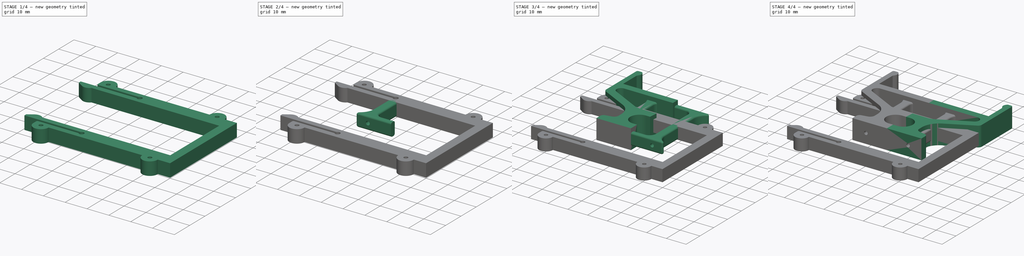
[diagram: build sequence overview — one tinted view per stage of 4, left to right]
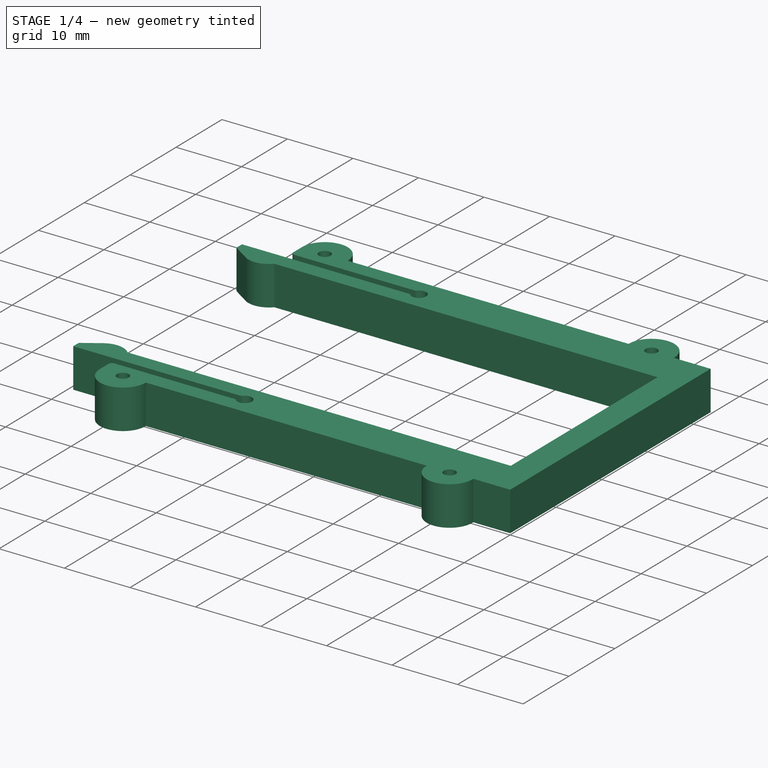
[diagram: stage 1 of 4 — iso view after this stage's code; geometry added in this stage tinted green]
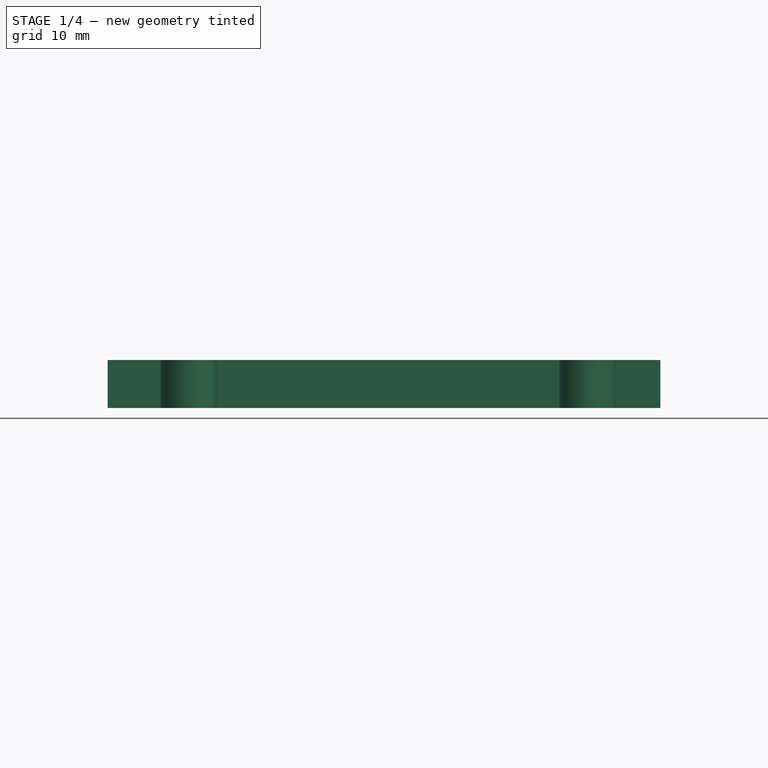
[diagram: stage 1 of 4 — front view after this stage's code; geometry added in this stage tinted green]
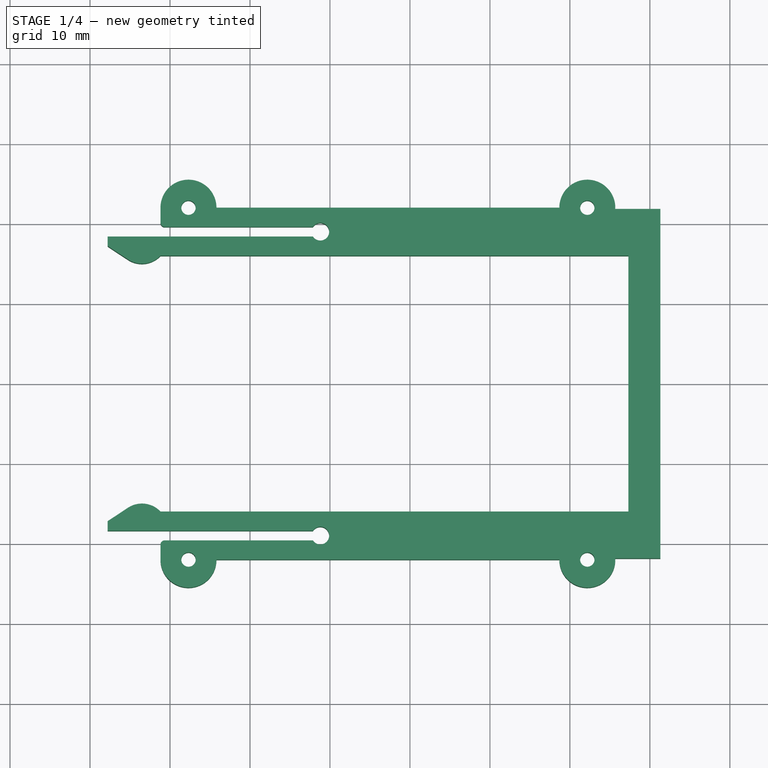
[diagram: stage 1 of 4 — top view after this stage's code; geometry added in this stage tinted green]
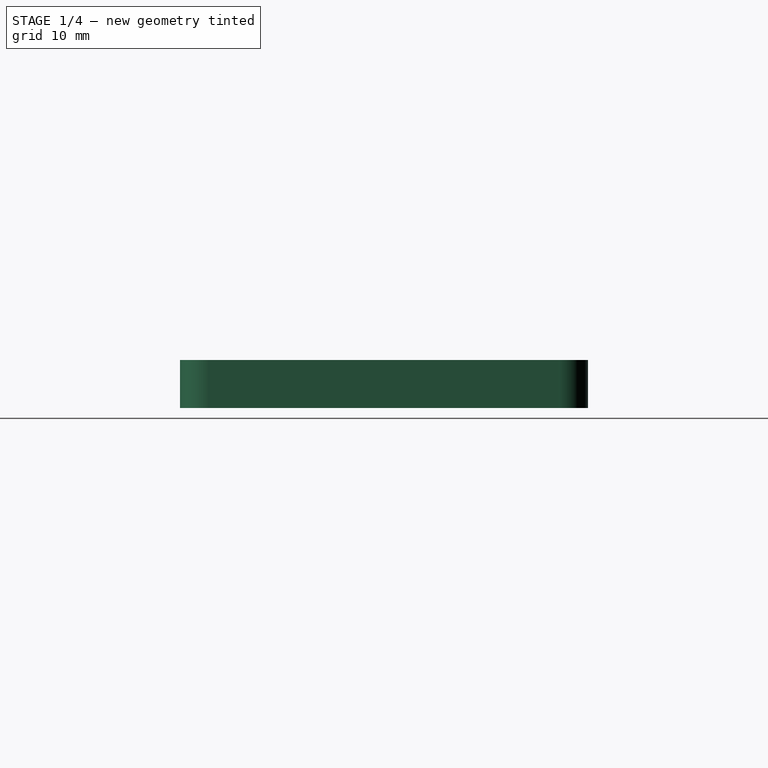
[diagram: stage 1 of 4 — right view after this stage's code; geometry added in this stage tinted green]
FCSTD DOCUMENT  (FreeCAD 1.0R39319 (Git))
Label: paolo_bread_stand_batteria
License: All rights reserved
LicenseURL: http://en.wikipedia.org/wiki/All_rights_reserved
objects: Sketcher::SketchObject×5, PartDesign::Mirrored×4, PartDesign::Pad×3, PartDesign::Body×3, PartDesign::Pocket×2, PartDesign::SubShapeBinder×1, PartDesign::Fillet×1
note: 40 computed .brp shape members not serialized (recipe doc carries the construction recipe); baked Part::Feature solids carry a one-line shape summary decoded from their .brp

FEATURE [PartDesign::Body] Body001
  AllowCompound = false
  Group = -> [Binder,Sketch002,Pad001,Sketch003,Pocket001,Fillet,Mirrored001,Mirrored002]
  Origin = -> Origin001
  Tip = -> Mirrored002
FEATURE [Sketcher::SketchObject] Sketch004
  ArcFitTolerance = 1e-06
  AttachmentSupport = -> [XY_Plane002]
  FullyConstrained = false
  MakeInternals = false
  MapMode = 5
  sketch-geometry (25):
    g0: LineSegment StartX=27.3107 StartY=-16 StartZ=0 EndX=-31.1893 EndY=-16 EndZ=0
    g1: LineSegment StartX=27.3107 StartY=1.0905e-12 StartZ=0 EndX=27.3107 EndY=-16 EndZ=0
    g2: LineSegment StartX=31.3107 StartY=-21.8446 StartZ=0 EndX=31.3107 EndY=1.0907e-12 EndZ=0
    g3: LineSegment StartX=31.3107 StartY=1.0905e-12 StartZ=0 EndX=27.3107 EndY=1.0905e-12 EndZ=0
    g4: LineSegment StartX=-12.1359 StartY=-18.4 StartZ=0 EndX=-37.7956 EndY=-18.4 EndZ=0
    g5: LineSegment StartX=-30.655 StartY=-19.6 StartZ=0 EndX=-12.1359 EndY=-19.6 EndZ=0
    g6: LineSegment StartX=-31.1893 StartY=-20.1343 StartZ=0 EndX=-31.1893 EndY=-22 EndZ=0
    g7: ArcOfCircle CenterX=-11.2053 CenterY=-19 CenterZ=0 NormalX=0 NormalY=0 NormalZ=1 AngleXU=0 Radius=1.1073 StartAngle=3.71424 EndAngle=8.85213
    g8: GeomPoint [constr] X=-34.09 Y=-18.4 Z=0
    g9: ArcOfCircle CenterX=-33.505 CenterY=-18.1813 CenterZ=0 NormalX=0 NormalY=0 NormalZ=1 AngleXU=0 Radius=3.18127 StartAngle=0.75551 EndAngle=2.15379
    g10: LineSegment StartX=-37.7956 StartY=-17.2 StartZ=0 EndX=-37.7956 EndY=-18.4 EndZ=0
    g11: GeomPoint [constr] X=-33.505 Y=-15 Z=0
    g12: Circle CenterX=-27.6893 CenterY=-22 CenterZ=0 NormalX=0 NormalY=0 NormalZ=1 AngleXU=0 Radius=0.9
    g13: LineSegment StartX=-24.1893 StartY=-22 StartZ=0 EndX=18.6777 EndY=-22 EndZ=0
    g14: ArcOfCircle CenterX=-27.6893 CenterY=-22 CenterZ=0 NormalX=0 NormalY=0 NormalZ=1 AngleXU=0 Radius=3.5 StartAngle=3.14159 EndAngle=6.28319
    g15: Circle CenterX=22.1777 CenterY=-22 CenterZ=0 NormalX=0 NormalY=0 NormalZ=1 AngleXU=0 Radius=0.9
    g16: ArcOfCircle CenterX=22.1777 CenterY=-22 CenterZ=0 NormalX=0 NormalY=0 NormalZ=1 AngleXU=0 Radius=3.5 StartAngle=3.14159 EndAngle=6.3276
    g17: LineSegment StartX=25.6742 StartY=-21.8446 StartZ=0 EndX=31.3107 EndY=-21.8446 EndZ=0
    g18: LineSegment [constr] StartX=-12.1359 StartY=-18.4 StartZ=0 EndX=-12.1359 EndY=-19.6 EndZ=0
    g19: GeomPoint [constr] X=-12.1359 Y=-19 Z=0
    g20: LineSegment StartX=-37.7956 StartY=-17.2 StartZ=0 EndX=-35.2563 EndY=-15.5255 EndZ=0
    g21: LineSegment [constr] StartX=-16.7931 StartY=-16 StartZ=0 EndX=-16.7931 EndY=-18.4 EndZ=0
    g22: ArcOfCircle CenterX=-30.655 CenterY=-20.1343 CenterZ=0 NormalX=0 NormalY=0 NormalZ=1 AngleXU=0 Radius=0.534283 StartAngle=1.5708 EndAngle=3.14159
    g23: GeomPoint [constr] X=-31.1893 Y=-19.6 Z=0
    g24: LineSegment [constr] StartX=-17.9498 StartY=-19.6 StartZ=0 EndX=-17.9498 EndY=-22 EndZ=0
  constraints (62):
    c: Horizontal(g0)
    c: Coincident(g17,g2)
    c: Coincident(g2,g3)
    c: Coincident(g3,g1)
    c: Vertical(g1)
    c: Vertical(g2)
    c: Horizontal(g3)
    c: PointOnObject(g1,g-1)
    c: Coincident(g1,g0)
    c: Horizontal(g4)
    c: Horizontal(g5)
    c: Coincident(g7,g5)
    c: Coincident(g4,g7)
    c: DistanceY(g0,g1) = 16
    c: DistanceX(g0,g0) = 58.5
    c: PointOnObject(g8,g4)
    c: DistanceY(g4,g0) = 2.4
    c: Coincident(g9,g0)
    c: Coincident(g10,g9)
    c: Coincident(g10,g4)
    c: Vertical(g10)
    c: DistanceY(g0,g-1) = 16
    c: PointOnObject(g11,g9)
    c: Vertical(g11,g9)
    c: DistanceY(g23,g4) = 1.2
    c: Diameter(g12) = 1.8
    c: Coincident(g14,g12)
    c: Coincident(g13,g14)
    c: Coincident(g6,g14)
    c: Horizontal(g13)
    c: Coincident(g16,g15)
    c: Equal(g16,g14)
    c: Vertical(g6)
    c: Equal(g12,g15)
    c: Coincident(g16,g17)
    c: Coincident(g16,g13)
    c: Vertical(g5,g4)
    c: Coincident(g18,g4)
    c: Coincident(g18,g5)
    c: Symmetric(g18,g18,g19)
    c: Horizontal(g13,g6)
    c: Horizontal(g15,g13)
    c: Horizontal(g13,g12)
    c: Coincident(g20,g10)
    c: Tangent(g20,g9) = 1.5708
    c: DistanceY(g0,g11) = 1
    c: PointOnObject(g21,g0)
    c: PointOnObject(g21,g4)
    c: Vertical(g21)
    c: Vertical(g23,g0)
    c: DistanceY(g4,g10) = 1.2
    c: PointOnObject(g23,g5)
    c: PointOnObject(g23,g6)
    c: Tangent(g5,g22) = 1.5708
    c: Tangent(g6,g22) = -1.5708
    c: Diameter(g14) = 7
    c: Horizontal(g17)
    c: PointOnObject(g24,g5)
    c: PointOnObject(g24,g13)
    c: Vertical(g24)
    c: Equal(g24,g21)
    c: DistanceX(g1,g2) = 4
FEATURE [PartDesign::Pad] Pad002
  Direction = (0,0,1)
  Length = 6
  Length2 = 10
  Midplane = true
  Profile = -> Sketch004
  ReferenceAxis = -> Sketch004 [N_Axis]
  Suppressed = false
  Type = 0
FEATURE [PartDesign::Mirrored] Mirrored003
  BaseFeature = -> Pad002
  MirrorPlane = -> Pad002 [Face8]
  Originals = -> [Pad002]
  Suppressed = false
  TransformMode = 0
FEATURE [PartDesign::Body] Body002
  AllowCompound = false
  Group = -> [Sketch004,Pad002,Mirrored003]
  Origin = -> Origin002
  Tip = -> Mirrored003
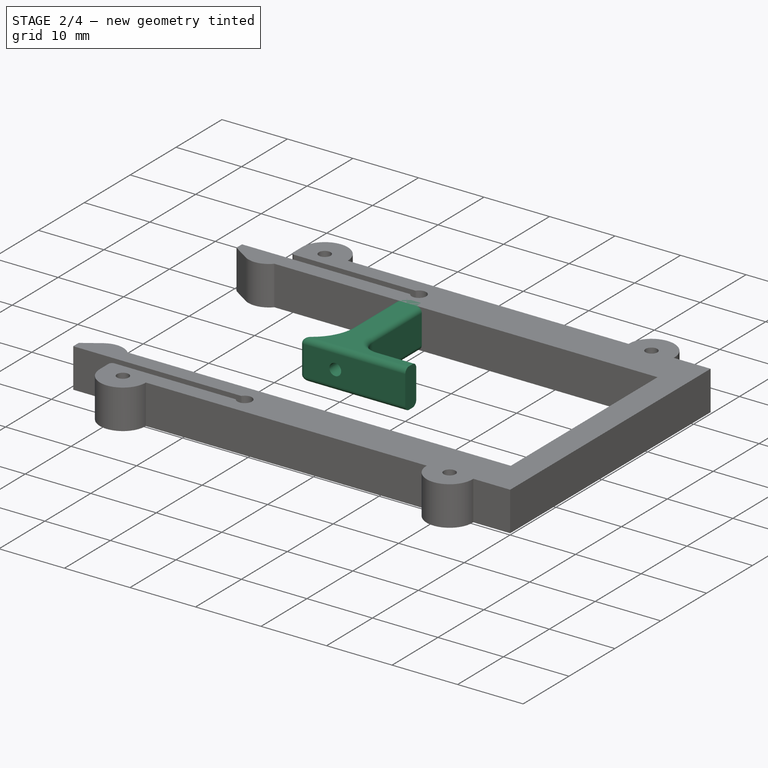
[diagram: stage 2 of 4 — iso view after this stage's code; geometry added in this stage tinted green]
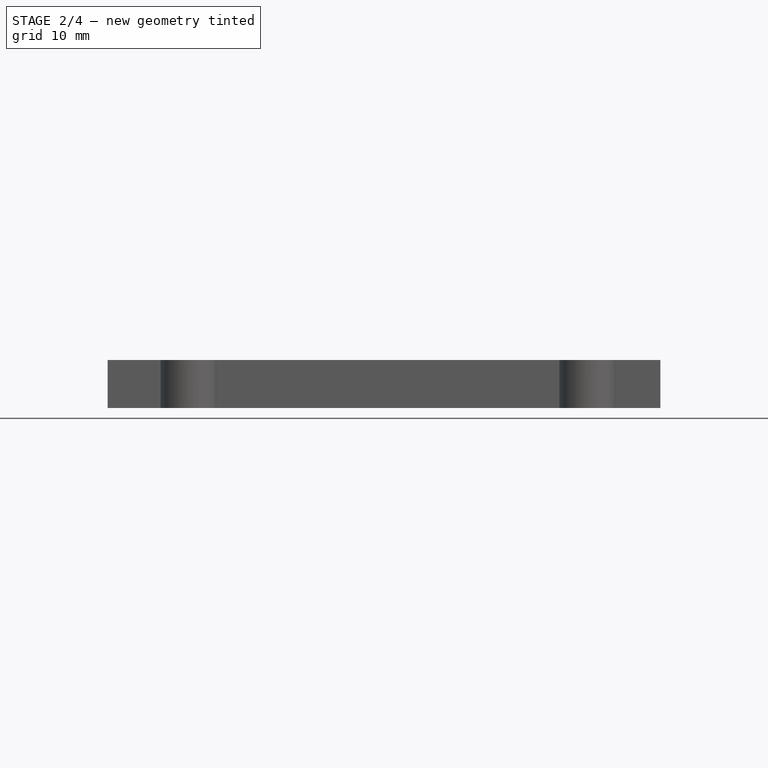
[diagram: stage 2 of 4 — front view after this stage's code; geometry added in this stage tinted green]
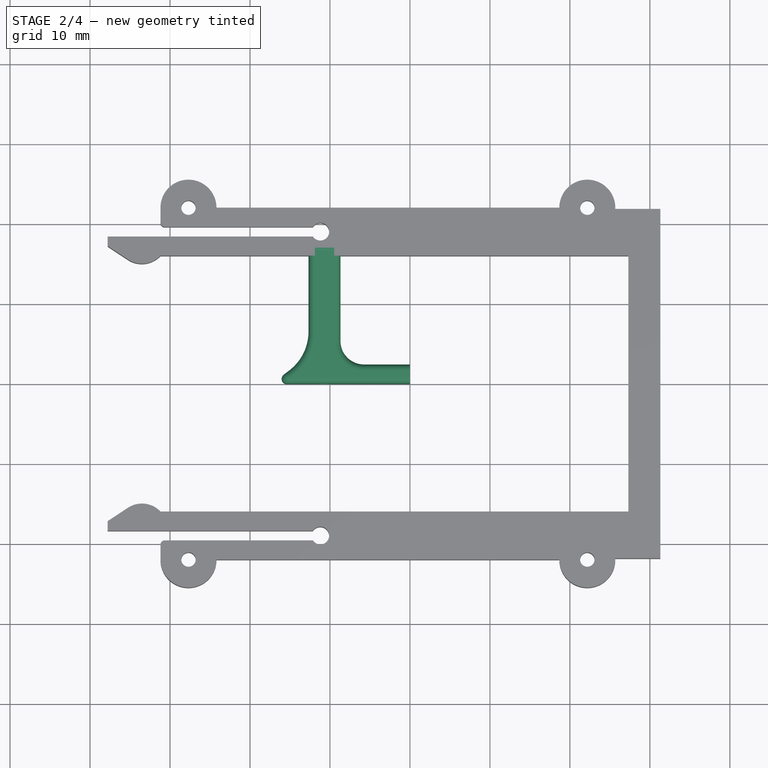
[diagram: stage 2 of 4 — top view after this stage's code; geometry added in this stage tinted green]
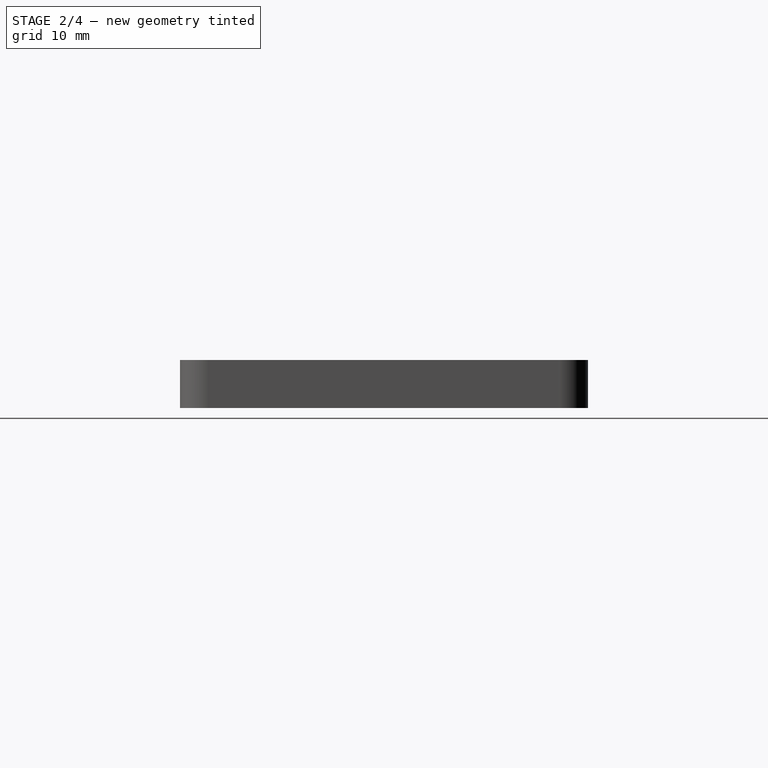
[diagram: stage 2 of 4 — right view after this stage's code; geometry added in this stage tinted green]
FEATURE [PartDesign::Body] Body
  AllowCompound = false
  Group = -> [Sketch,Pad,Sketch001,Pocket,Mirrored]
  Origin = -> Origin
  Tip = -> Mirrored
FEATURE [PartDesign::SubShapeBinder] Binder
  BindCopyOnChange = 0
  BindMode = 0
  ClaimChildren = false
  Context = -> Body001 [Binder.]
  Fuse = false
  MakeFace = true
  OffsetFill = false
  OffsetIntersection = false
  OffsetJoinType = 0
  OffsetOpenResult = false
  PartialLoad = false
  Relative = true
  Support = -> [Body[Sketch001.]]
  _Version = 2
FEATURE [Sketcher::SketchObject] Sketch002
  ArcFitTolerance = 1e-06
  AttachmentSupport = -> [XY_Plane001]
  FullyConstrained = false
  MakeInternals = false
  MapMode = 5
  sketch-geometry (15):
    g0: LineSegment StartX=-15.4079 StartY=8.595e-13 StartZ=0 EndX=-5.436e-13 EndY=8.595e-13 EndZ=0
    g1: LineSegment StartX=-5.431e-13 StartY=8.595e-13 StartZ=0 EndX=-5.431e-13 EndY=2.4 EndZ=0
    g2: GeomPoint X=-10.68 Y=1.6721e-12 Z=0
    g3: ArcOfCircle CenterX=-5.76249 CenterY=5.31751 CenterZ=0 NormalX=0 NormalY=0 NormalZ=1 AngleXU=0 Radius=2.91751 StartAngle=3.14159 EndAngle=4.71239
    g4: LineSegment StartX=-5.431e-13 StartY=2.4 StartZ=0 EndX=-5.76249 EndY=2.4 EndZ=0
    g5: LineSegment StartX=-8.68 StartY=17 StartZ=0 EndX=-8.68 EndY=5.31751 EndZ=0
    g6: LineSegment StartX=-12.68 StartY=17 StartZ=0 EndX=-12.68 EndY=6.52779 EndZ=0
    g7: LineSegment StartX=-12.68 StartY=17 StartZ=0 EndX=-8.68 EndY=17 EndZ=0
    g8: GeomPoint [constr] X=-10.68 Y=17 Z=0
    g9: LineSegment [constr] StartX=-10.68 StartY=19.8371 StartZ=0 EndX=-10.68 EndY=-3.09938 EndZ=0
    g10: LineSegment StartX=-15.7866 StartY=1.12976 StartZ=0 EndX=-15.1149 EndY=1.63712 EndZ=0
    g11: ArcOfCircle CenterX=-18.8091 CenterY=6.52779 CenterZ=0 NormalX=0 NormalY=0 NormalZ=1 AngleXU=0 Radius=6.12907 StartAngle=5.3593 EndAngle=6.28319
    g12: GeomPoint [constr] X=-12.68 Y=3.47632 Z=0
    g13: ArcOfCircle CenterX=-15.4079 CenterY=0.628362 CenterZ=0 NormalX=0 NormalY=0 NormalZ=1 AngleXU=0 Radius=0.628362 StartAngle=2.21771 EndAngle=4.71239
    g14: GeomPoint [constr] X=-17.2823 Y=3.3931e-12 Z=0
  constraints (30):
    c: Coincident(g0,g1)
    c: Vertical(g1)
    c: Horizontal(g0)
    c: Coincident(g0,g-1)
    c: PointOnObject(g2,g0)
    c: DistanceX(g2,g0) = 10.68
    c: Horizontal(g4)
    c: Vertical(g5)
    c: Tangent(g5,g3) = -1.5708
    c: Tangent(g4,g3) = 1.5708
    c: Vertical(g6)
    c: Horizontal(g7)
    c: Coincident(g5,g7)
    c: Coincident(g6,g7)
    c: DistanceY(g0,g4) = 2.4
    c: DistanceX(g6,g5) = 4
    c: Symmetric(g7,g7,g8)
    c: Vertical(g9)
    c: PointOnObject(g8,g9)
    c: PointOnObject(g2,g9)
    c: PointOnObject(g12,g6)
    c: PointOnObject(g12,g10)
    c: Tangent(g6,g11) = 1.5708
    c: Tangent(g10,g11) = -1.5708
    c: PointOnObject(g14,g10)
    c: PointOnObject(g14,g0)
    c: Tangent(g10,g13) = 1.5708
    c: Tangent(g0,g13) = -1.5708
    c: DistanceY(g0,g5) = 17
    c: Coincident(g1,g4)
FEATURE [PartDesign::Pad] Pad001
  Direction = (0,0,1)
  Length = 6
  Length2 = 10
  Midplane = true
  Profile = -> Sketch002
  ReferenceAxis = -> Sketch002 [N_Axis]
  Suppressed = false
  Type = 0
FEATURE [Sketcher::SketchObject] Sketch003
  ArcFitTolerance = 1e-06
  AttachmentSupport = -> [Pad001]
  ExternalGeometry = -> [Sketch002]
  FullyConstrained = true
  MakeInternals = false
  MapMode = 5
  Placement = pos=(0,8.595e-13,0) rot=(1,0,0;1.5708rad)
  sketch-geometry (1):
    g0: Circle CenterX=-10.68 CenterY=0 CenterZ=0 NormalX=0 NormalY=0 NormalZ=1 AngleXU=0 Radius=0.9
  constraints (2):
    c: Coincident(g0,g-3)
    c: Diameter(g0) = 1.8
FEATURE [PartDesign::Pocket] Pocket001
  BaseFeature = -> Pad001
  Direction = (0,1,-2e-16)
  Length = 5
  Length2 = 5
  Profile = -> Sketch003
  ReferenceAxis = -> Sketch003 [N_Axis]
  Suppressed = false
  Type = 0
FEATURE [PartDesign::Fillet] Fillet
  Base = -> Pocket001 [Edge24,Edge25,Edge4,Edge9,Edge20,Edge21,Edge22,Edge17,Edge18,Edge3,Edge8,Edge14,Edge15,Edge13]
  BaseFeature = -> Pocket001
  Radius = 0.8
  SupportTransform = false
  Suppressed = false
  UseAllEdges = false
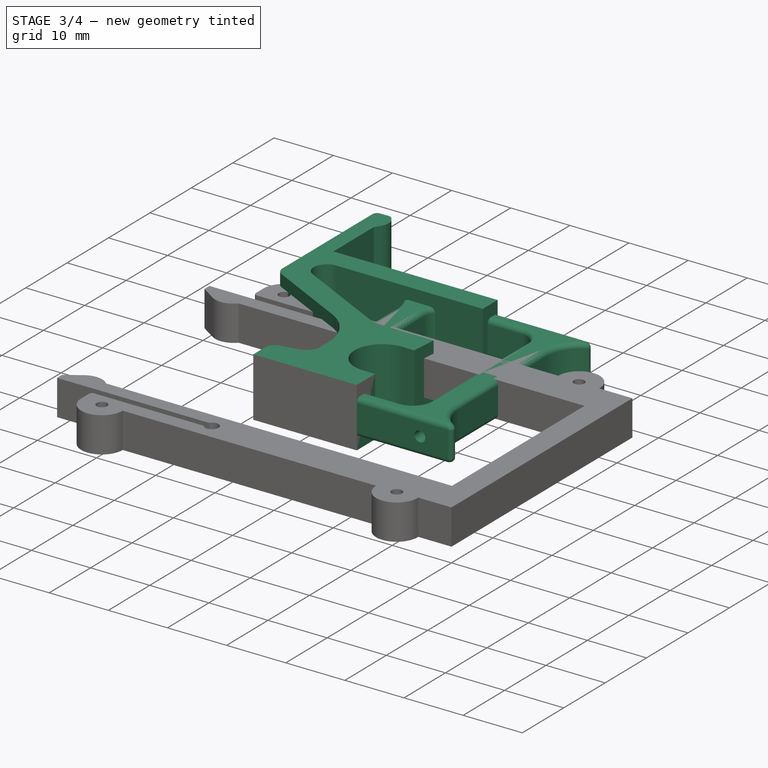
[diagram: stage 3 of 4 — iso view after this stage's code; geometry added in this stage tinted green]
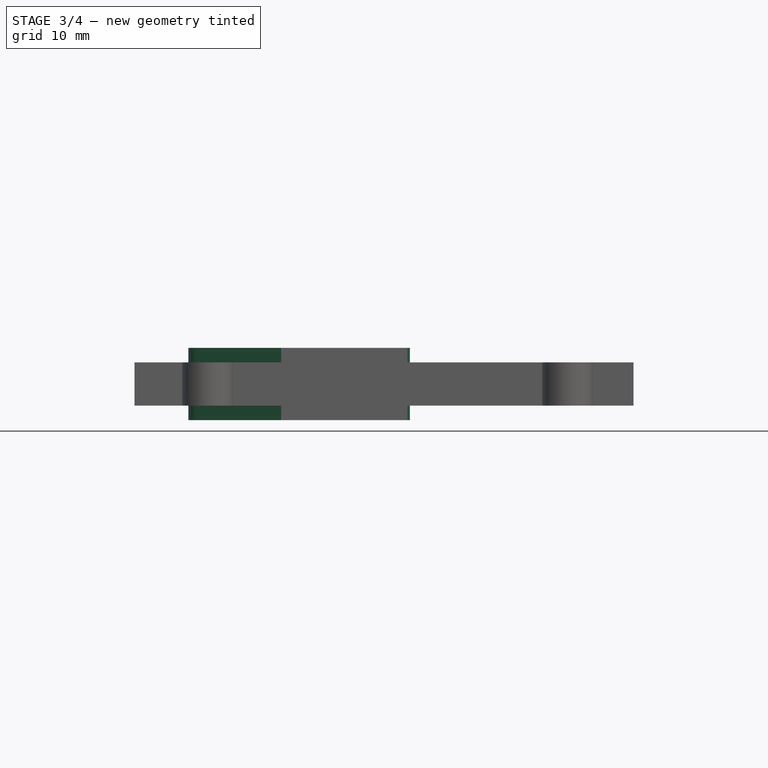
[diagram: stage 3 of 4 — front view after this stage's code; geometry added in this stage tinted green]
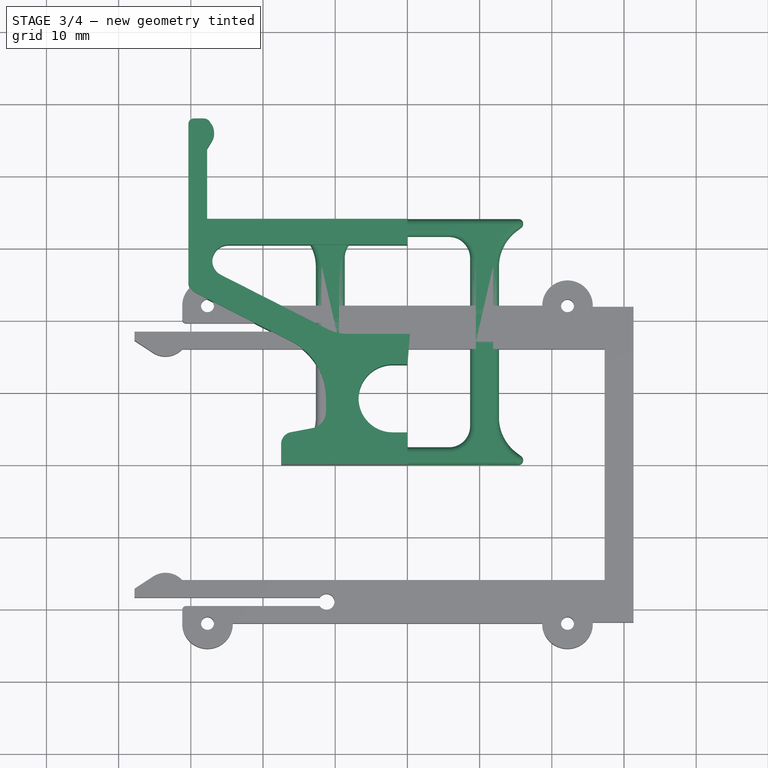
[diagram: stage 3 of 4 — top view after this stage's code; geometry added in this stage tinted green]
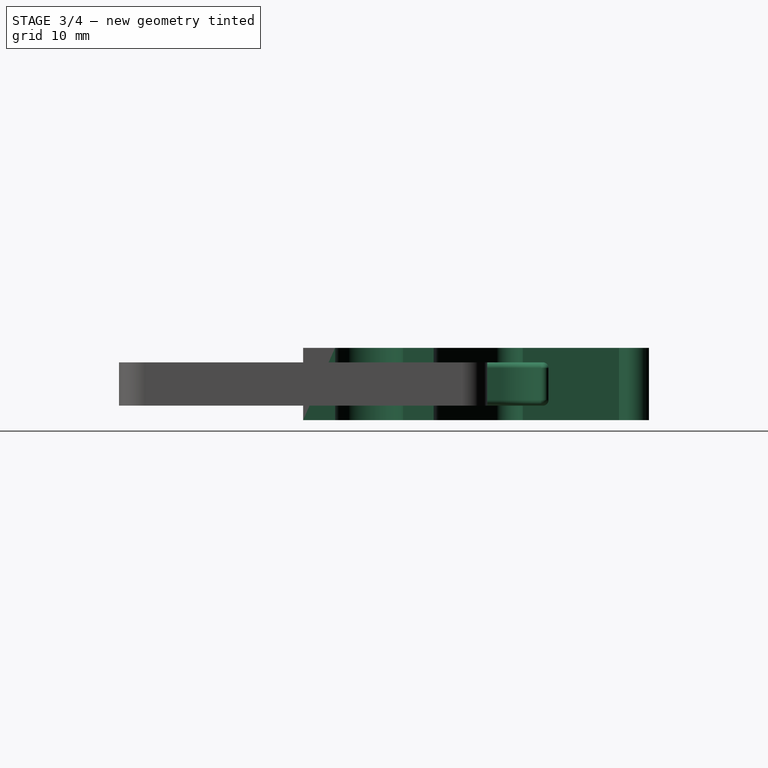
[diagram: stage 3 of 4 — right view after this stage's code; geometry added in this stage tinted green]
FEATURE [Sketcher::SketchObject] Sketch
  ArcFitTolerance = 1e-06
  AttachmentSupport = -> [XY_Plane]
  FullyConstrained = false
  MakeInternals = false
  MapMode = 5
  sketch-geometry (37):
    g0: LineSegment StartX=-17.5 StartY=0 StartZ=0 EndX=0 EndY=0 EndZ=0
    g1: LineSegment StartX=-11.282 StartY=9.17253 StartZ=0 EndX=-11.282 EndY=7.30134 EndZ=0
    g2: LineSegment StartX=-27.75 StartY=34 StartZ=0 EndX=0 EndY=34 EndZ=0
    g3: LineSegment StartX=-27.75 StartY=34 StartZ=0 EndX=-27.75 EndY=43.75 EndZ=0
    g4: LineSegment StartX=-30.3449 StartY=43.6607 StartZ=0 EndX=-30.3449 EndY=25.4068 EndZ=0
    g5: LineSegment StartX=0 StartY=34 StartZ=0 EndX=0 EndY=30.4356 EndZ=0
    g6: LineSegment StartX=-29.3367 StartY=23.7632 StartZ=0 EndX=-16.1058 EndY=17.0365 EndZ=0
    g7: LineSegment StartX=-17.5 StartY=0 StartZ=0 EndX=-17.5 EndY=2.79732 EndZ=0
    g8: LineSegment StartX=-16.139 StartY=4.44076 StartZ=0 EndX=-13.1872 EndY=5.00071 EndZ=0
    g9: ArcOfCircle CenterX=-2.04669 CenterY=9.13976 CenterZ=0 NormalX=0 NormalY=0 NormalZ=1 AngleXU=0 Radius=4.71773 StartAngle=1.5708 EndAngle=4.71239
    g10: LineSegment StartX=-2.04669 StartY=13.8575 StartZ=0 EndX=0 EndY=13.8575 EndZ=0
    g11: LineSegment StartX=-2.04669 StartY=4.42203 StartZ=0 EndX=0 EndY=4.42203 EndZ=0
    g12: LineSegment StartX=0 StartY=4.42203 StartZ=0 EndX=0 EndY=0 EndZ=0
    g13: ArcOfCircle CenterX=-15.8273 CenterY=2.79732 CenterZ=0 NormalX=0 NormalY=0 NormalZ=1 AngleXU=0 Radius=1.67274 StartAngle=1.75827 EndAngle=3.14159
    g14: GeomPoint [constr] X=-17.5 Y=4.18258 Z=0
    g15: ArcOfCircle CenterX=-13.6236 CenterY=7.30134 CenterZ=0 NormalX=0 NormalY=0 NormalZ=1 AngleXU=0 Radius=2.34166 StartAngle=4.89986 EndAngle=6.28319
    g16: GeomPoint [constr] X=-11.282 Y=5.36213 Z=0
    g17: ArcOfCircle CenterX=-20.104 CenterY=9.17253 CenterZ=0 NormalX=0 NormalY=0 NormalZ=1 AngleXU=0 Radius=8.82199 StartAngle=0 EndAngle=1.10044
    g18: GeomPoint [constr] X=-11.282 Y=14.584 Z=0
    g19: ArcOfCircle CenterX=-28.5011 CenterY=25.4068 CenterZ=0 NormalX=0 NormalY=0 NormalZ=1 AngleXU=0 Radius=1.8438 StartAngle=3.14159 EndAngle=4.24204
    g20: GeomPoint [constr] X=-30.3449 Y=24.2758 Z=0
    g21: LineSegment StartX=-24.7971 StartY=30.4356 StartZ=0 EndX=0 EndY=30.4356 EndZ=0
    g22: LineSegment StartX=-25.8061 StartY=26.2247 StartZ=0 EndX=-11.0607 EndY=18.728 EndZ=0
    g23: LineSegment StartX=-8.27987 StartY=18.0617 StartZ=0 EndX=0.336421 EndY=18.0617 EndZ=0
    g24: ArcOfCircle CenterX=-24.7971 CenterY=28.2093 CenterZ=0 NormalX=0 NormalY=0 NormalZ=1 AngleXU=0 Radius=2.22633 StartAngle=1.5708 EndAngle=4.24204
    g25: ArcOfCircle CenterX=-8.27987 CenterY=24.1977 CenterZ=0 NormalX=0 NormalY=0 NormalZ=1 AngleXU=0 Radius=6.13598 StartAngle=4.24204 EndAngle=4.71239
    g26: GeomPoint [constr] X=-9.75012 Y=18.0617 Z=0
    g27: LineSegment StartX=0.336421 StartY=18.0617 StartZ=0 EndX=0 EndY=13.8575 EndZ=0
    g28: LineSegment StartX=-27.75 StartY=43.75 StartZ=0 EndX=-27.0854 EndY=44.8434 EndZ=0
    g29: LineSegment StartX=-27.162 StartY=47.1527 StartZ=0 EndX=-27.406 EndY=47.5001 EndZ=0
    g30: LineSegment StartX=-28.1856 StartY=47.9051 StartZ=0 EndX=-29.5647 EndY=47.9051 EndZ=0
    g31: LineSegment StartX=-30.3449 StartY=47.1249 StartZ=0 EndX=-30.3449 EndY=43.6607 EndZ=0
    g32: ArcOfCircle CenterX=-28.8889 CenterY=45.9395 CenterZ=0 NormalX=0 NormalY=0 NormalZ=1 AngleXU=0 Radius=2.11044 StartAngle=5.73706 EndAngle=6.89558
    g33: ArcOfCircle CenterX=-28.1856 CenterY=46.9524 CenterZ=0 NormalX=0 NormalY=0 NormalZ=1 AngleXU=0 Radius=0.952708 StartAngle=0.612396 EndAngle=1.5708
    g34: GeomPoint [constr] X=-27.6906 Y=47.9051 Z=0
    g35: ArcOfCircle CenterX=-29.5647 CenterY=47.1249 CenterZ=0 NormalX=0 NormalY=0 NormalZ=1 AngleXU=0 Radius=0.780191 StartAngle=1.5708 EndAngle=3.14159
    g36: GeomPoint [constr] X=-30.3449 Y=47.9051 Z=0
  constraints (67):
    c: PointOnObject(g0,g-1)
    c: Coincident(g0,g-1)
    c: Vertical(g1)
    c: Horizontal(g2)
    c: Coincident(g3,g2)
    c: Vertical(g3)
    c: Vertical(g4)
    c: PointOnObject(g2,g-2)
    c: Coincident(g5,g2)
    c: Coincident(g12,g0)
    c: Coincident(g7,g0)
    c: Vertical(g7)
    c: Tangent(g9,g10) = 1.5708
    c: Tangent(g9,g11) = -1.5708
    c: Horizontal(g10)
    c: PointOnObject(g11,g12)
    c: Coincident(g27,g10)
    c: PointOnObject(g12,g11)
    c: PointOnObject(g11,g-2)
    c: Horizontal(g11)
    c: PointOnObject(g14,g8)
    c: PointOnObject(g14,g7)
    c: Tangent(g8,g13) = 1.5708
    c: Tangent(g7,g13) = 1.5708
    c: PointOnObject(g16,g1)
    c: PointOnObject(g16,g8)
    c: Tangent(g1,g15) = 1.5708
    c: Tangent(g8,g15) = -1.5708
    c: PointOnObject(g18,g6)
    c: PointOnObject(g18,g1)
    c: Tangent(g6,g17) = 1.5708
    c: Tangent(g1,g17) = 1.5708
    c: PointOnObject(g20,g4)
    c: PointOnObject(g20,g6)
    c: Tangent(g4,g19) = -1.5708
    c: Tangent(g6,g19) = -1.5708
    c: PointOnObject(g27,g-2)
    c: DistanceX(g2,g2) = 27.75
    c: DistanceY(g2,g3) = 9.75
    c: DistanceX(g0,g0) = 17.5
    c: Horizontal(g21)
    c: PointOnObject(g23,g27)
    c: Tangent(g21,g24) = 1.5708
    c: Tangent(g22,g24) = -1.5708
    c: PointOnObject(g26,g22)
    c: PointOnObject(g26,g23)
    c: Tangent(g22,g25) = -1.5708
    c: Tangent(g23,g25) = -1.5708
    c: Horizontal(g23)
    c: Parallel(g22,g6)
    c: Coincident(g5,g21)
    c: PointOnObject(g27,g23)
    c: DistanceY(g0,g2) = 34
    c: Coincident(g28,g3)
    c: Horizontal(g30)
    c: Coincident(g31,g4)
    c: Vertical(g31)
    c: Tangent(g29,g32) = -1.5708
    c: Tangent(g28,g32) = -1.5708
    c: PointOnObject(g34,g30)
    c: PointOnObject(g34,g29)
    c: Tangent(g30,g33) = -1.5708
    c: Tangent(g29,g33) = -1.5708
    c: PointOnObject(g36,g30)
    c: PointOnObject(g36,g31)
    c: Tangent(g30,g35) = -1.5708
    c: Tangent(g31,g35) = -1.5708
FEATURE [PartDesign::Pad] Pad
  Direction = (0,0,1)
  Length = 10
  Length2 = 10
  Midplane = true
  Profile = -> Sketch
  ReferenceAxis = -> Sketch [N_Axis]
  Suppressed = false
  Type = 0
FEATURE [PartDesign::Mirrored] Mirrored001
  BaseFeature = -> Fillet
  MirrorPlane = -> Fillet [Face11]
  Originals = -> [Fillet]
  Suppressed = false
  TransformMode = 1
FEATURE [PartDesign::Mirrored] Mirrored002
  BaseFeature = -> Mirrored001
  MirrorPlane = -> Mirrored001 [Face28]
  Originals = -> [Mirrored001]
  Suppressed = false
  TransformMode = 1
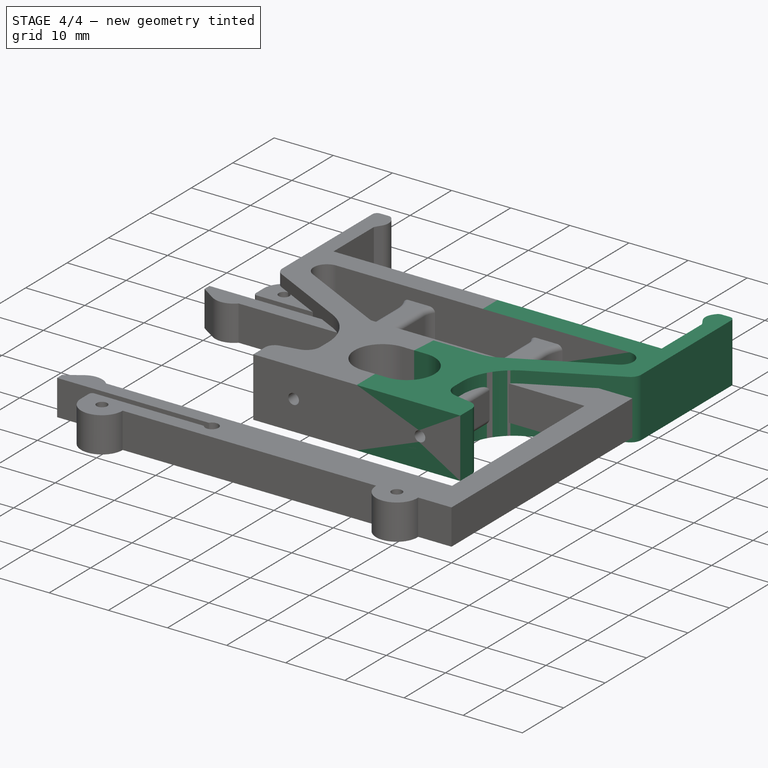
[diagram: stage 4 of 4 — iso view after this stage's code; geometry added in this stage tinted green]
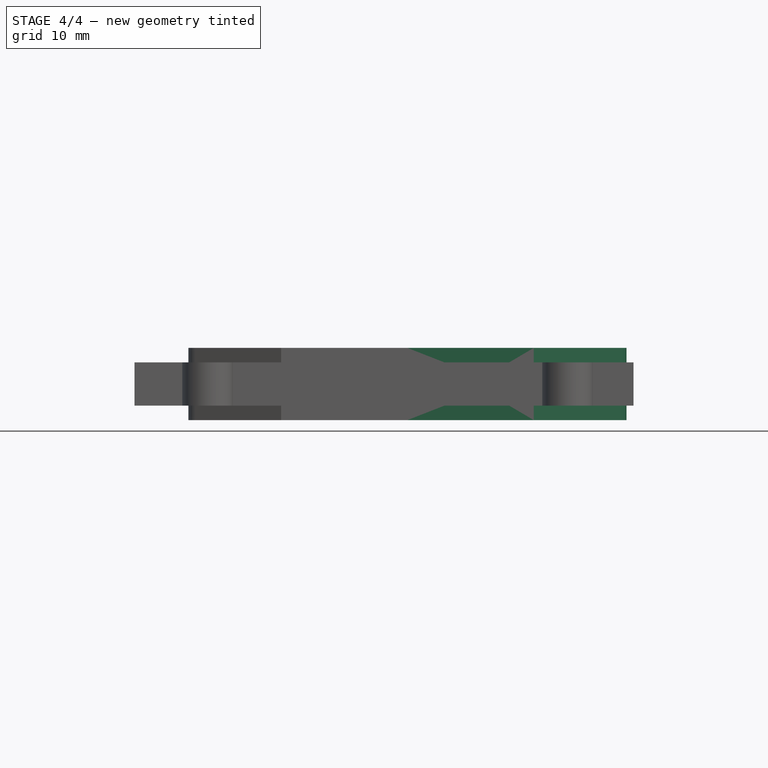
[diagram: stage 4 of 4 — front view after this stage's code; geometry added in this stage tinted green]
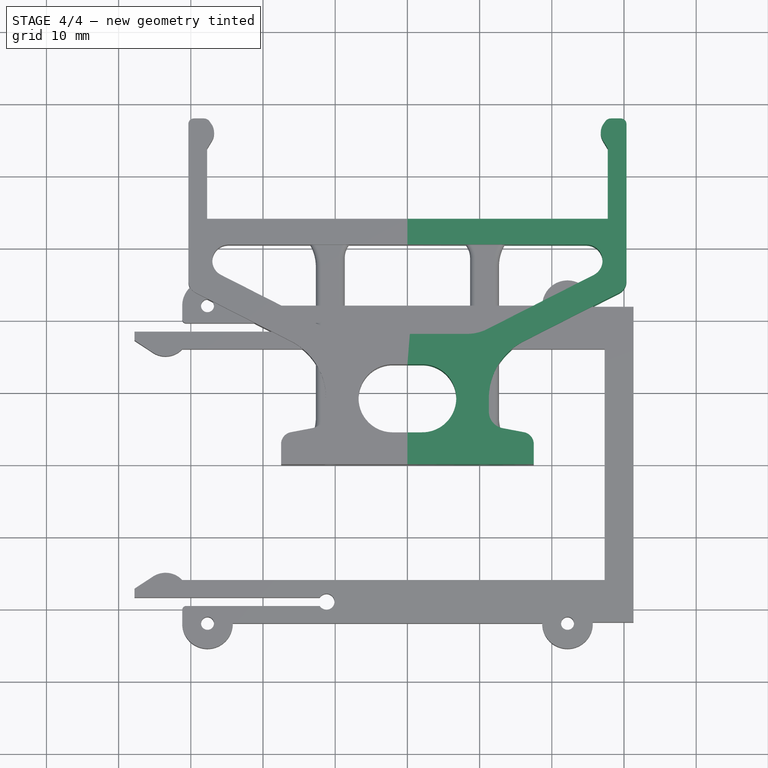
[diagram: stage 4 of 4 — top view after this stage's code; geometry added in this stage tinted green]
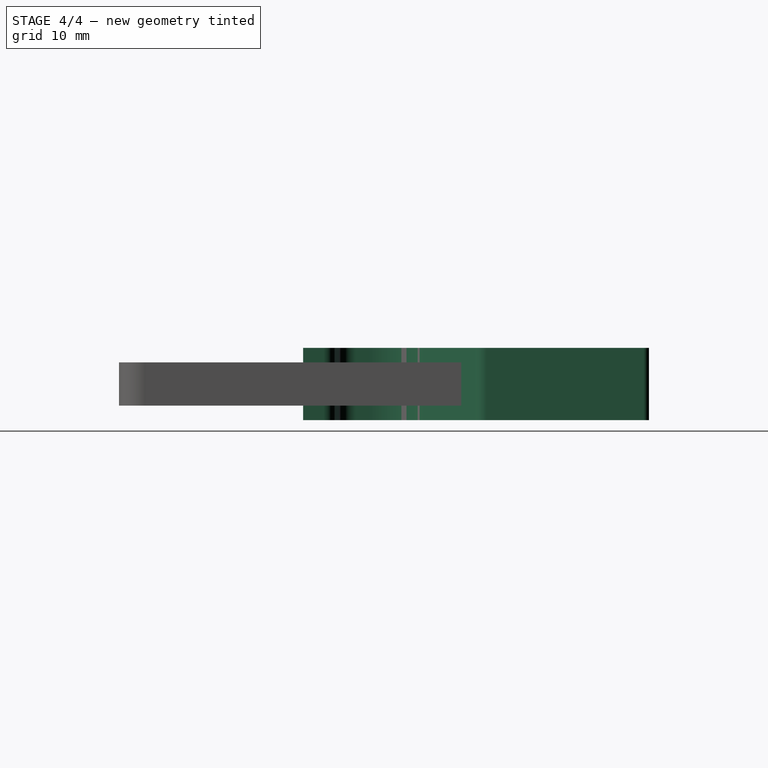
[diagram: stage 4 of 4 — right view after this stage's code; geometry added in this stage tinted green]
FEATURE [Sketcher::SketchObject] Sketch001
  ArcFitTolerance = 1e-06
  AttachmentSupport = -> [Pad]
  FullyConstrained = true
  MakeInternals = false
  MapMode = 5
  Placement = pos=(0,0,0) rot=(1,0,0;1.5708rad)
  expr: Constraints[1] = 21.36 / 2
  sketch-geometry (1):
    g0: Circle CenterX=-10.68 CenterY=0 CenterZ=0 NormalX=0 NormalY=0 NormalZ=1 AngleXU=0 Radius=0.9
  constraints (3):
    c: PointOnObject(g0,g-1)
    c: DistanceX(g0,g-1) = 10.68
    c: Diameter(g0) = 1.8
FEATURE [PartDesign::Pocket] Pocket
  BaseFeature = -> Pad
  Direction = (0,1,-2e-16)
  Length = 5
  Length2 = 5
  Profile = -> Sketch001
  ReferenceAxis = -> Sketch001 [N_Axis]
  Suppressed = false
  Type = 0
FEATURE [PartDesign::Mirrored] Mirrored
  BaseFeature = -> Pocket
  MirrorPlane = -> YZ_Plane
  Originals = -> [Pocket]
  Suppressed = false
  TransformMode = 1
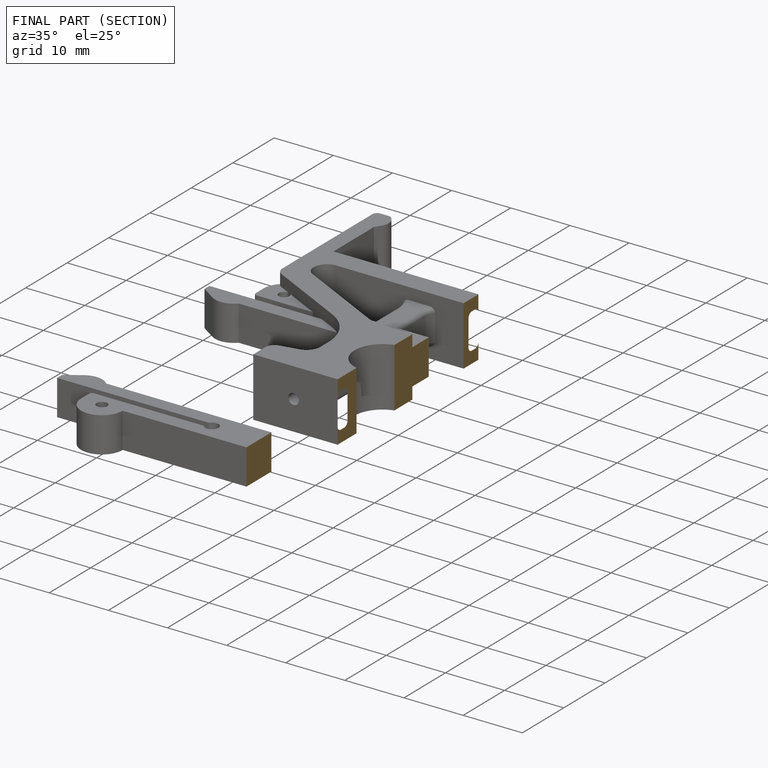
[diagram: finished part — half-section view (interior)]
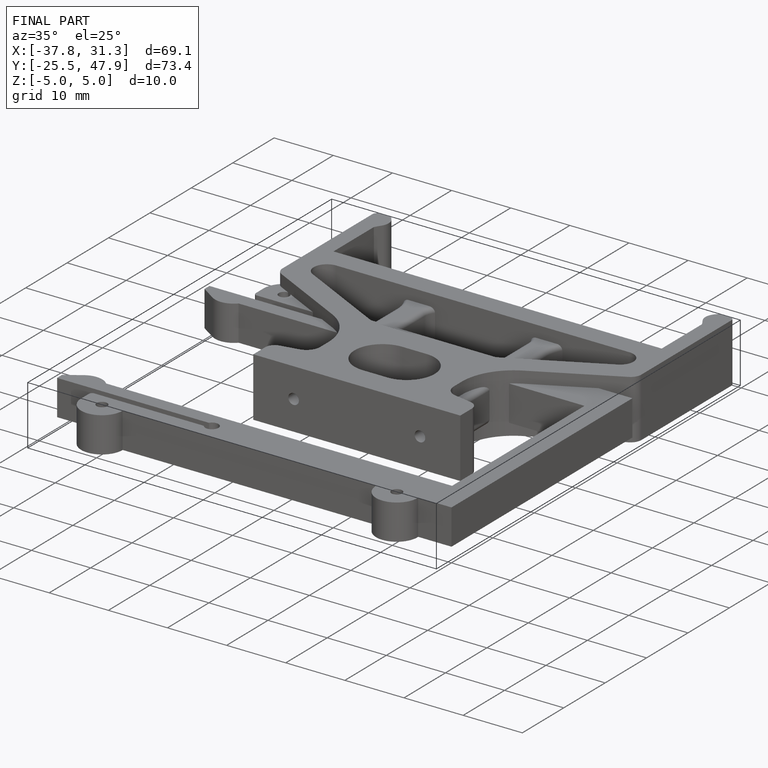
[diagram: finished part — iso view with bounding-box wireframe]
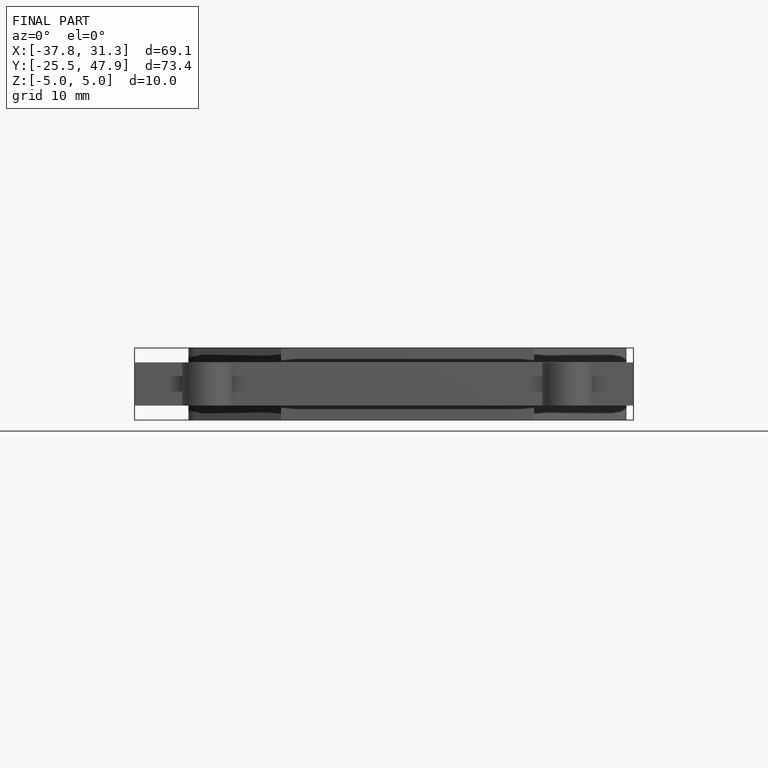
[diagram: finished part — front view with bounding-box wireframe]
